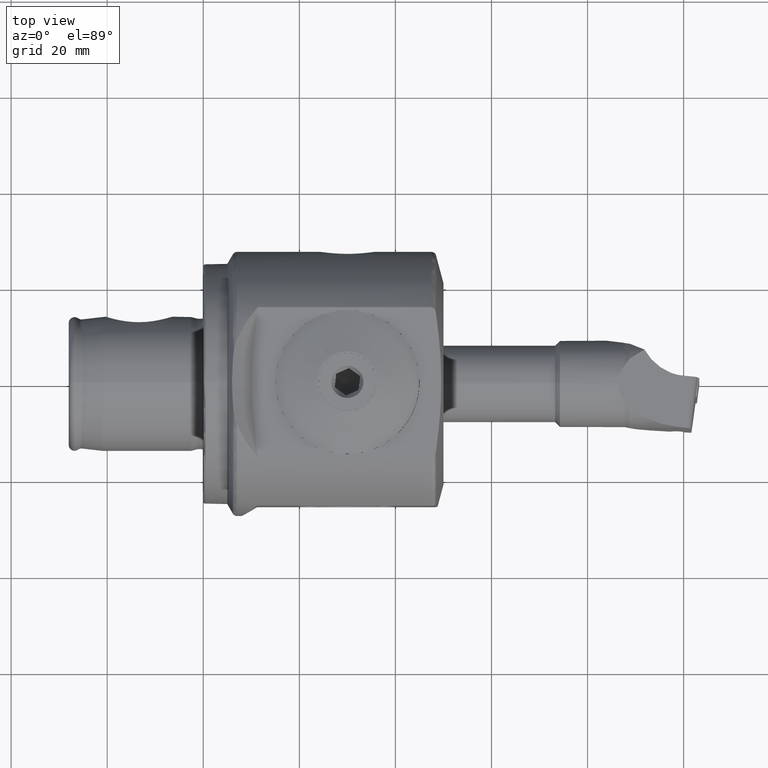
[diagram: clean part render]
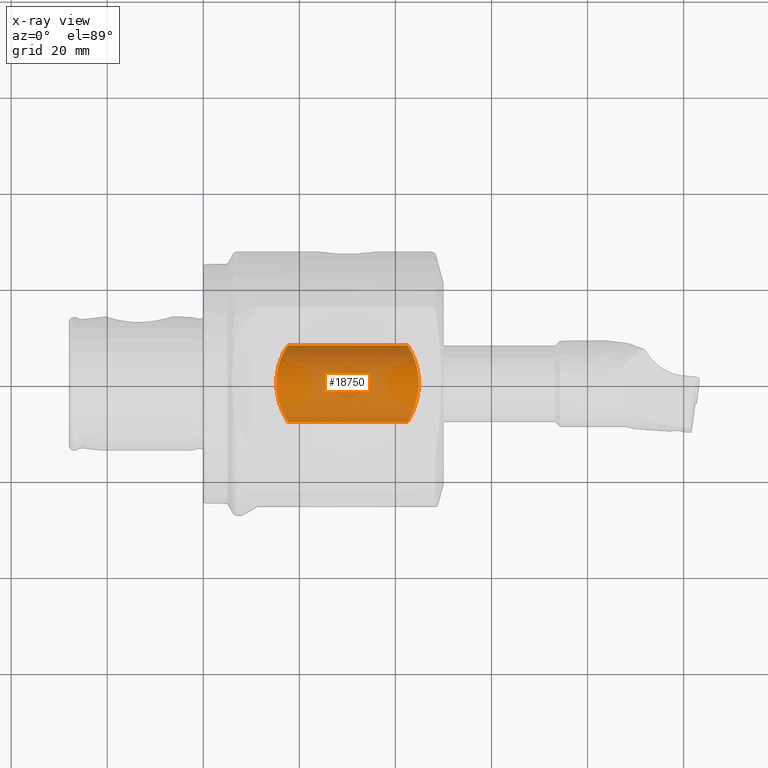
[diagram: x-ray — body ghosted, one internal face saturated and labeled with its STEP entity id]
A machine part, top view, then the same camera in x-ray: the body is ghosted and one INTERNAL B-rep face — a face not visible from any outside direction — is saturated and labeled: STEP entity #18750.
In plain terms, the highlighted cylindrical surface (partial cylindrical patch) has radius 8 mm, axis along (1, 0, -0).
Its self-contained STEP definition (entity closure, byte-faithful):
#433 = CARTESIAN_POINT ( 'NONE',  ( -15.80000000000000100, 12.48857607528455700, 8.000000000000001800 ) ) ;
#1081 = CARTESIAN_POINT ( 'NONE',  ( -11.99703373363391800, 13.06183204446252500, -7.057253590648738100 ) ) ;
#1215 = CARTESIAN_POINT ( 'NONE',  ( -15.80000000000000100, -15.00000000000000000, -8.000000000000001800 ) ) ;
#1603 = CARTESIAN_POINT ( 'NONE',  ( -11.33938364170049200, 13.27321232365917300, -6.646032415699727900 ) ) ;
#1752 = CARTESIAN_POINT ( 'NONE',  ( -11.10842185684682300, 13.35169939681795400, -6.486914297312771400 ) ) ;
#1874 = CARTESIAN_POINT ( 'NONE',  ( -10.75209540959881400, 13.48147047669598600, -6.208172024815761200 ) ) ;
#2124 = CARTESIAN_POINT ( 'NONE',  ( -10.63169837279675200, 13.52673424834530500, -6.108580947810309200 ) ) ;
#2469 = CARTESIAN_POINT ( 'NONE',  ( -10.44988572799376100, 13.59764002335423400, -5.948344559867129200 ) ) ;
#2769 = CARTESIAN_POINT ( 'NONE',  ( -10.35867785753278400, 13.63384544024244400, -5.865514638053881800 ) ) ;
#2860 = CARTESIAN_POINT ( 'NONE',  ( -10.25203629387486800, 13.67740201970023000, -5.763961592325542500 ) ) ;
#3018 = CARTESIAN_POINT ( 'NONE',  ( -10.17583689488210500, 13.70904690381690100, -5.689397697775950400 ) ) ;
#3217 = CARTESIAN_POINT ( 'NONE',  ( -10.20631654635023700, 13.69635132370104500, -5.719367291649706300 ) ) ;
#3603 = CARTESIAN_POINT ( 'NONE',  ( -10.15980640386001700, 13.71576318392245500, -5.673499314152998400 ) ) ;
#3794 = CARTESIAN_POINT ( 'NONE',  ( -7.801823745643228700, 14.85423781895214500, -1.026708712967904400 ) ) ;
#4062 = VERTEX_POINT ( 'NONE', #14767 ) ;
#4149 = EDGE_CURVE ( 'NONE', #40300, #37562, #26857, .T. ) ;
#4317 = LINE ( 'NONE', #31682, #31246 ) ;
#4638 = CARTESIAN_POINT ( 'NONE',  ( -9.354900941299016300, 14.06590102309155600, -4.767303448016594600 ) ) ;
#4839 = CARTESIAN_POINT ( 'NONE',  ( -8.935467580396174700, 14.26619226820550600, -4.116408103030219800 ) ) ;
#4932 = CARTESIAN_POINT ( 'NONE',  ( -8.652761362756022500, 14.40733507214255300, -3.595884635584245100 ) ) ;
#4981 = CARTESIAN_POINT ( 'NONE',  ( -8.578109635924686700, 14.44532980514390500, -3.444554931899741000 ) ) ;
#5632 = CARTESIAN_POINT ( 'NONE',  ( -8.500021303506045500, 14.48542966624847700, -3.273406308129688900 ) ) ;
#6548 = EDGE_CURVE ( 'NONE', #12999, #28780, #45104, .T. ) ;
#7941 = CARTESIAN_POINT ( 'NONE',  ( -8.463120768669048400, 14.50442276495150500, -3.189261263636397700 ) ) ;
#8025 = CARTESIAN_POINT ( 'NONE',  ( -8.432596171940165400, 14.52014269458635800, -3.117916326795261700 ) ) ;
#8319 = CARTESIAN_POINT ( 'NONE',  ( -8.445193041018018900, 14.51365510634071600, -3.147555607736791700 ) ) ;
#8335 = EDGE_CURVE ( 'NONE', #22811, #12999, #23905, .T. ) ;
#8677 = CARTESIAN_POINT ( 'NONE',  ( -8.437620275026594300, 14.51755520808702300, -3.129761360217059100 ) ) ;
#9176 = CARTESIAN_POINT ( 'NONE',  ( -8.430764657437185500, 14.52108589064422300, -3.113590356201487700 ) ) ;
#9462 = CARTESIAN_POINT ( 'NONE',  ( -7.998693979794978800, 14.74360967960919800, -2.087882750989551500 ) ) ;
#9968 = CARTESIAN_POINT ( 'NONE',  ( -7.798309228702202700, 14.86038199151019200, -0.01431353123325688700 ) ) ;
#11187 = CARTESIAN_POINT ( 'NONE',  ( -7.798309228702202700, 14.86038199151019200, -0.01431353123325688700 ) ) ;
#12114 = CARTESIAN_POINT ( 'NONE',  ( -7.800019248237294500, -14.79999038288568300, 0.01754911468533361400 ) ) ;
#12176 = CARTESIAN_POINT ( 'NONE',  ( -7.798935397564521900, -14.80060712764182500, -0.4765376056678002900 ) ) ;
#12280 = CARTESIAN_POINT ( 'NONE',  ( -7.843830692140918400, -14.77156512392016400, -0.9918609266544377000 ) ) ;
#12290 = CARTESIAN_POINT ( 'NONE',  ( -7.995374959085290300, -14.68350957263729500, -1.777338602802722900 ) ) ;
#12428 = CARTESIAN_POINT ( 'NONE',  ( -8.059903404547139200, -14.64674254364759800, -2.041378397874367600 ) ) ;
#12477 = CARTESIAN_POINT ( 'NONE',  ( -8.179348133036089800, -14.58046923231992200, -2.438184855605034100 ) ) ;
#12485 = CARTESIAN_POINT ( 'NONE',  ( -8.244729891552630400, -14.54455188469529700, -2.636768476185397800 ) ) ;
#12566 = CARTESIAN_POINT ( 'NONE',  ( -8.331225207202511000, -14.49778210153522600, -2.868135816814613400 ) ) ;
#12577 = CARTESIAN_POINT ( 'NONE',  ( -8.377062255876005300, -14.47318065722233800, -2.983657566262385400 ) ) ;
#12616 = CARTESIAN_POINT ( 'NONE',  ( -8.400632399718851700, -14.46057579688268100, -3.041367388026914800 ) ) ;
#12627 = CARTESIAN_POINT ( 'NONE',  ( -8.410873968316355600, -14.45510854141214500, -3.066088082102774900 ) ) ;
#12718 = CARTESIAN_POINT ( 'NONE',  ( -8.417732858026955300, -14.45144922166115700, -3.082565730663776800 ) ) ;
#12728 = CARTESIAN_POINT ( 'NONE',  ( -8.421619903177532500, -14.44937690274265300, -3.091852782749571600 ) ) ;
#12772 = CARTESIAN_POINT ( 'NONE',  ( -8.593241950385632300, -14.35791219398861400, -3.500433451434571200 ) ) ;
#12782 = CARTESIAN_POINT ( 'NONE',  ( -8.811284096071606300, -14.24327820495361700, -3.927778351718671500 ) ) ;
#12828 = CARTESIAN_POINT ( 'NONE',  ( -9.236039956667955400, -14.03446257693152100, -4.580592400667540300 ) ) ;
#12858 = CARTESIAN_POINT ( 'NONE',  ( -9.393890733278887200, -13.95871326017922300, -4.800036436862828100 ) ) ;
#12865 = CARTESIAN_POINT ( 'NONE',  ( -9.657666192166235700, -13.83587312393337100, -5.127512245352287200 ) ) ;
#12911 = CARTESIAN_POINT ( 'NONE',  ( -9.796297296983844700, -13.77214901553109900, -5.290814120412313100 ) ) ;
#12923 = CARTESIAN_POINT ( 'NONE',  ( -9.970317621274528400, -13.69377215190625600, -5.479452730020640600 ) ) ;
#12969 = CARTESIAN_POINT ( 'NONE',  ( -10.06045115252666200, -13.65357570247160800, -5.573151516249105000 ) ) ;
#12999 = VERTEX_POINT ( 'NONE', #9968 ) ;
#13006 = CARTESIAN_POINT ( 'NONE',  ( -10.09975445085442700, -13.63613264893771800, -5.613158796174994700 ) ) ;
#13058 = CARTESIAN_POINT ( 'NONE',  ( -10.12610714004832800, -13.62445594574264100, -5.639795280453011400 ) ) ;
#13069 = CARTESIAN_POINT ( 'NONE',  ( -10.13832397403970900, -13.61904507874394300, -5.652069400110094400 ) ) ;
#13113 = CARTESIAN_POINT ( 'NONE',  ( -10.64185080460273300, -13.39688006042420000, -6.153743390057296200 ) ) ;
#13153 = CARTESIAN_POINT ( 'NONE',  ( -11.12878006070701200, -13.21543803263901600, -6.514980619360621900 ) ) ;
#13159 = CARTESIAN_POINT ( 'NONE',  ( -11.78425927616709300, -12.99426106683942800, -6.923882110992590100 ) ) ;
#13208 = CARTESIAN_POINT ( 'NONE',  ( -11.99074105452770000, -12.92903309088593400, -7.038133940513774600 ) ) ;
#13261 = CARTESIAN_POINT ( 'NONE',  ( -12.27698905468234400, -12.84393764592524300, -7.183302837047885500 ) ) ;
#13301 = CARTESIAN_POINT ( 'NONE',  ( -12.36851456710996400, -12.81769691743327000, -7.227319169589698300 ) ) ;
#13313 = CARTESIAN_POINT ( 'NONE',  ( -12.49946171971445200, -12.78152245443769500, -7.287575435231083500 ) ) ;
#13369 = CARTESIAN_POINT ( 'NONE',  ( -12.56335169040060700, -12.76423188037550500, -7.316260661284158800 ) ) ;
#13416 = CARTESIAN_POINT ( 'NONE',  ( -12.63502469850254800, -12.74545369448191300, -7.347365047450193900 ) ) ;
#13447 = CARTESIAN_POINT ( 'NONE',  ( -12.66511861721655500, -12.73770464706586700, -7.360206234619680800 ) ) ;
#13455 = CARTESIAN_POINT ( 'NONE',  ( -12.68504177887400000, -12.73260500357479900, -7.368660148283147700 ) ) ;
#13507 = CARTESIAN_POINT ( 'NONE',  ( -12.69279716100930600, -12.73062476644308400, -7.371948139178960500 ) ) ;
#13516 = CARTESIAN_POINT ( 'NONE',  ( -13.24476940629294000, -12.59116291455568900, -7.603126881352428000 ) ) ;
#13567 = AXIS2_PLACEMENT_3D ( 'NONE', #15630, #14675, #14587 ) ;
#13595 = CARTESIAN_POINT ( 'NONE',  ( -13.78016407135418900, -12.48973820929536100, -7.758861354938916900 ) ) ;
#13603 = CARTESIAN_POINT ( 'NONE',  ( -14.81906662319057800, -12.35451085858112900, -7.957225421846128900 ) ) ;
#13667 = CARTESIAN_POINT ( 'NONE',  ( -15.32190926080623300, -12.32069792520781900, -8.000000001388819700 ) ) ;
#13758 = CARTESIAN_POINT ( 'NONE',  ( -15.80000002317506100, -12.32071618647199300, -8.000000466043690700 ) ) ;
#14139 = CARTESIAN_POINT ( 'NONE',  ( -15.80000000009334600, 12.48857784695298700, -7.999999479175090600 ) ) ;
#14587 = DIRECTION ( 'NONE',  ( 0.0000000000000000000, 0.0000000000000000000, 1.000000000000000000 ) ) ;
#14675 = DIRECTION ( 'NONE',  ( -0.0000000000000000000, 1.000000000000000000, -0.0000000000000000000 ) ) ;
#14767 = CARTESIAN_POINT ( 'NONE',  ( -15.79999992792845600, -12.32070942630816300, 8.000005597875608400 ) ) ;
#15587 = EDGE_CURVE ( 'NONE', #37562, #4062, #19202, .T. ) ;
#15630 = CARTESIAN_POINT ( 'NONE',  ( -15.80000000000000100, -15.00000000000000000, 0.0000000000000000000 ) ) ;
#16603 = CARTESIAN_POINT ( 'NONE',  ( -9.705737012919945200, 13.90660695935770100, -5.219895281373318600 ) ) ;
#18750 = ADVANCED_FACE ( 'NONE', ( #24260 ), #24008, .F. ) ;
#19202 = B_SPLINE_CURVE_WITH_KNOTS ( 'NONE', 3,
 ( #29658, #29605, #29554, #29522, #29505, #29463, #29411, #29350, #29315, #29189, #29145, #29086, #28996, #28980, #28934, #28887, #28848, #28833, #28795, #28725, #28684, #28555, #28551, #28515, #28458, #28403, #28395, #28367, #28349, #28216, #28202, #28159, #28100, #28054, #28041, #27995, #27946, #27934, #27901, #27886, #27785, #27750 ),
 .UNSPECIFIED., .F., .F.,
 ( 4, 2, 2, 2, 1, 1, 1, 1, 2, 2, 2, 2, 1, 1, 2, 2, 2, 2, 2, 1, 1, 1, 1, 2, 2, 4 ),
 ( 0.5000000000000000000, 0.5312099454723497900, 0.5624198909446996900, 0.5629075463427051200, 0.5633952017407105600, 0.5643705125367215500, 0.5663211341287433000, 0.5702223773127869100, 0.5780248636808740200, 0.5936298364170481400, 0.6248397818893964800, 0.6258150926854073600, 0.6267904034814182300, 0.6287410250734399900, 0.6326422682574836000, 0.6404447546255707100, 0.6560497273617447200, 0.6872596728340930600, 0.6877473282320985000, 0.6882349836301039400, 0.6892102944261148100, 0.6911609160181366700, 0.6950621592021801700, 0.7028646455702671800, 0.7184696183064412900, 0.7496795637787894200 ),
 .UNSPECIFIED. ) ;
#20067 = CARTESIAN_POINT ( 'NONE',  ( -7.800019248237294500, -14.79999038288568300, 0.01754911468533361400 ) ) ;
#21223 = LINE ( 'NONE', #1215, #30757 ) ;
#21985 = DIRECTION ( 'NONE',  ( -0.0000000000000000000, 1.000000000000000000, -0.0000000000000000000 ) ) ;
#22811 = VERTEX_POINT ( 'NONE', #433 ) ;
#23905 = B_SPLINE_CURVE_WITH_KNOTS ( 'NONE', 3,
 ( #30424, #30477, #29644, #29580, #29486, #29435, #29337, #29279, #29170, #29110, #29022, #28960, #28869, #28815, #28539, #28479, #28383, #28334, #28241, #28186, #28147, #28076, #28023, #27988, #27926, #27860, #27828, #27715, #27626, #27562, #27448, #27385, #27291, #27231, #27138, #27085, #27033, #26985, #26914, #26860, #26818, #26762, #26703, #26664, #26610, #26560, #26464, #26398, #26288 ),
 .UNSPECIFIED., .F., .F.,
 ( 4, 2, 2, 2, 1, 1, 1, 1, 2, 2, 2, 2, 2, 1, 1, 2, 2, 2, 2, 2, 1, 1, 1, 2, 2, 2, 2, 2, 4 ),
 ( 0.0000000000000000000, 0.03125994611234391600, 0.04688991916851593300, 0.05470490569660189900, 0.05861239896064487200, 0.06056614559266634800, 0.06154301890867708300, 0.06203145556668245700, 0.06227567389568508500, 0.06251989222468772000, 0.09377983833703514000, 0.1094098113932088600, 0.1172247979212957400, 0.1211322911853392100, 0.1230860378173608700, 0.1240629111333717400, 0.1250397844493826000, 0.1562997305617306900, 0.1719297036179047200, 0.1797446901459917300, 0.1836521834100352200, 0.1856059300420569700, 0.1865828033580678700, 0.1870712400160733100, 0.1875596766740787200, 0.2188196227864254700, 0.2344495958425988300, 0.2422645823706855700, 0.2500795688987722500 ),
 .UNSPECIFIED. ) ;
#24008 = CYLINDRICAL_SURFACE ( 'NONE', #13567, 8.000000000000001800 ) ;
#24260 = FACE_OUTER_BOUND ( 'NONE', #45410, .T. ) ;
#26288 = CARTESIAN_POINT ( 'NONE',  ( -7.798309228702202700, 14.86038199151019200, -0.01431353123325688700 ) ) ;
#26398 = CARTESIAN_POINT ( 'NONE',  ( -7.799785937229216000, 14.85475260890642900, 0.1125153898005803300 ) ) ;
#26464 = CARTESIAN_POINT ( 'NONE',  ( -7.802625340165729300, 14.85308855717571000, 0.2422796455528361000 ) ) ;
#26489 = CARTESIAN_POINT ( 'NONE',  ( -15.80000002317506100, -12.32071618647199300, -8.000000466043690700 ) ) ;
#26560 = CARTESIAN_POINT ( 'NONE',  ( -7.814623621088585100, 14.84631739819847400, 0.5004647475419086200 ) ) ;
#26610 = CARTESIAN_POINT ( 'NONE',  ( -7.823779922561200800, 14.84121034505559900, 0.6300264256673631100 ) ) ;
#26664 = CARTESIAN_POINT ( 'NONE',  ( -7.860956229040254200, 14.82072476466423400, 1.019639193976627800 ) ) ;
#26703 = CARTESIAN_POINT ( 'NONE',  ( -7.898692075714096800, 14.80018181645299100, 1.280625850974626000 ) ) ;
#26762 = CARTESIAN_POINT ( 'NONE',  ( -8.052360826755252900, 14.71789528796821700, 2.063192957402216100 ) ) ;
#26818 = CARTESIAN_POINT ( 'NONE',  ( -8.208926170584959400, 14.63549402384367000, 2.584486643515612900 ) ) ;
#26857 = B_SPLINE_CURVE_WITH_KNOTS ( 'NONE', 3,
 ( #13758, #13667, #13603, #13595, #13516, #13507, #13455, #13447, #13416, #13369, #13313, #13301, #13261, #13208, #13159, #13153, #13113, #13069, #13058, #13006, #12969, #12923, #12911, #12865, #12858, #12828, #12782, #12772, #12728, #12718, #12627, #12616, #12577, #12566, #12485, #12477, #12428, #12290, #12280, #12176, #12114 ),
 .UNSPECIFIED., .F., .F.,
 ( 4, 2, 2, 2, 1, 1, 2, 2, 2, 2, 2, 1, 1, 1, 2, 2, 2, 2, 1, 1, 1, 1, 2, 2, 4 ),
 ( 0.2496991956747531800, 0.2809867962154086700, 0.3122743967560641700, 0.3132521342729596700, 0.3142298717898551800, 0.3161853468236460200, 0.3200962968912278200, 0.3279181970263914700, 0.3435619972967189400, 0.3748495978373739300, 0.3758273353542694900, 0.3768050728711649400, 0.3787605479049558400, 0.3826714979725377400, 0.3904933981077015100, 0.4061371983780289700, 0.4374247989186840200, 0.4379136676771317500, 0.4384025364355794700, 0.4393802739524750300, 0.4413357489862661500, 0.4452466990538483900, 0.4530685991890128800, 0.4687123994593419600, 0.5000000000000000000 ),
 .UNSPECIFIED. ) ;
#26860 = CARTESIAN_POINT ( 'NONE',  ( -8.425414324898348200, 14.52383129308558000, 3.100896698177272500 ) ) ;
#26914 = CARTESIAN_POINT ( 'NONE',  ( -8.427403802812993000, 14.52280525992286200, 3.105618699846354000 ) ) ;
#26985 = CARTESIAN_POINT ( 'NONE',  ( -8.432456902164506800, 14.52019909959371600, 3.117587351967589600 ) ) ;
#27033 = CARTESIAN_POINT ( 'NONE',  ( -8.440073424541253600, 14.51627093472373500, 3.135566644002875800 ) ) ;
#27085 = CARTESIAN_POINT ( 'NONE',  ( -8.458105085599381600, 14.50697274605994000, 3.177701376094042900 ) ) ;
#27138 = CARTESIAN_POINT ( 'NONE',  ( -8.495220835812190800, 14.48784648619690300, 3.262693718241722600 ) ) ;
#27207 = ORIENTED_EDGE ( 'NONE', *, *, #43082, .F. ) ;
#27231 = CARTESIAN_POINT ( 'NONE',  ( -8.528884320663033600, 14.47054417911075100, 3.336751059922870200 ) ) ;
#27291 = CARTESIAN_POINT ( 'NONE',  ( -8.598801124800390400, 14.43472840485748600, 3.486381819681996700 ) ) ;
#27385 = CARTESIAN_POINT ( 'NONE',  ( -8.648865330659132800, 14.40923634191405100, 3.588159672345032200 ) ) ;
#27448 = CARTESIAN_POINT ( 'NONE',  ( -8.810410796891172700, 14.32791551275997800, 3.898731889339525300 ) ) ;
#27562 = CARTESIAN_POINT ( 'NONE',  ( -8.933251176463086200, 14.26724210622555900, 4.112811269668911900 ) ) ;
#27626 = CARTESIAN_POINT ( 'NONE',  ( -9.355090809610020500, 14.06584332532718100, 4.767910371375648100 ) ) ;
#27694 = ORIENTED_EDGE ( 'NONE', *, *, #4149, .T. ) ;
#27715 = CARTESIAN_POINT ( 'NONE',  ( -9.707849267026844600, 13.90573938966811200, 5.222650784681092300 ) ) ;
#27750 = CARTESIAN_POINT ( 'NONE',  ( -15.79999992792845600, -12.32070942630816300, 8.000005597875608400 ) ) ;
#27785 = CARTESIAN_POINT ( 'NONE',  ( -15.32376295283204800, -12.32051646354878100, 7.999999995501121400 ) ) ;
#27828 = CARTESIAN_POINT ( 'NONE',  ( -10.16402754109873500, 13.71398668423893100, 5.677692812640153800 ) ) ;
#27860 = CARTESIAN_POINT ( 'NONE',  ( -10.18050308281771200, 13.70709033129670300, 5.694006522694794000 ) ) ;
#27886 = CARTESIAN_POINT ( 'NONE',  ( -14.82068703618036700, -12.35427369732136400, 7.957436063474602000 ) ) ;
#27901 = CARTESIAN_POINT ( 'NONE',  ( -14.04123791190350100, -12.45583484810239500, 7.808758964382386500 ) ) ;
#27926 = CARTESIAN_POINT ( 'NONE',  ( -10.21097669003878900, 13.69440484032707100, 5.723921236654321700 ) ) ;
#27934 = CARTESIAN_POINT ( 'NONE',  ( -13.77736853879319200, -12.49817611504976800, 7.745067769418628100 ) ) ;
#27946 = CARTESIAN_POINT ( 'NONE',  ( -13.37824079988458700, -12.57441934050137000, 7.625900640045349700 ) ) ;
#27988 = CARTESIAN_POINT ( 'NONE',  ( -10.25668772620282700, 13.67547052922882100, 5.768434574986969200 ) ) ;
#27995 = CARTESIAN_POINT ( 'NONE',  ( -13.17785505034450500, -12.61572378448480200, 7.560412581381283000 ) ) ;
#28023 = CARTESIAN_POINT ( 'NONE',  ( -10.36331168939592800, 13.63194794749319700, 5.869808073568210100 ) ) ;
#28041 = CARTESIAN_POINT ( 'NONE',  ( -12.94333325655128100, -12.66948225716634200, 7.473186489042659800 ) ) ;
#28054 = CARTESIAN_POINT ( 'NONE',  ( -12.82598258372170200, -12.69775398218231800, 7.426810202297203600 ) ) ;
#28076 = CARTESIAN_POINT ( 'NONE',  ( -10.45450995548705500, 13.59576998170879100, 5.952499673130930100 ) ) ;
#28087 = ORIENTED_EDGE ( 'NONE', *, *, #15587, .T. ) ;
#28100 = CARTESIAN_POINT ( 'NONE',  ( -12.76729686344191700, -12.71223796685911500, 7.402924223279717900 ) ) ;
#28147 = CARTESIAN_POINT ( 'NONE',  ( -10.63631267496894700, 13.52491685583959400, 6.112478867673655000 ) ) ;
#28159 = CARTESIAN_POINT ( 'NONE',  ( -12.74214492884438600, -12.71851998647105800, 7.392537098966017500 ) ) ;
#28186 = CARTESIAN_POINT ( 'NONE',  ( -10.75671553417607900, 13.47968517952628500, 6.211924417617112200 ) ) ;
#28202 = CARTESIAN_POINT ( 'NONE',  ( -12.72537691705366200, -12.72272457679182100, 7.385578873290471700 ) ) ;
#28216 = CARTESIAN_POINT ( 'NONE',  ( -12.71528361666669000, -12.72526767699346500, 7.381365344425423900 ) ) ;
#28229 = ORIENTED_EDGE ( 'NONE', *, *, #43616, .T. ) ;
#28241 = CARTESIAN_POINT ( 'NONE',  ( -11.11311023752022500, 13.35000137338481200, 6.490297146355986000 ) ) ;
#28334 = CARTESIAN_POINT ( 'NONE',  ( -11.34418604272765500, 13.27156046635511000, 6.649258008862396700 ) ) ;
#28349 = CARTESIAN_POINT ( 'NONE',  ( -12.38956177211455600, -12.80756398144804500, 7.244984357961632400 ) ) ;
#28367 = CARTESIAN_POINT ( 'NONE',  ( -11.99831036773347200, -12.92195903431425600, 7.057892061685425500 ) ) ;
#28383 = CARTESIAN_POINT ( 'NONE',  ( -12.00245905885047600, 13.06028263645981700, 7.060192855812657000 ) ) ;
#28395 = CARTESIAN_POINT ( 'NONE',  ( -11.34140957725681000, -13.14359888171841100, 6.647378622121952000 ) ) ;
#28403 = CARTESIAN_POINT ( 'NONE',  ( -11.11104939855574600, -13.22582004220393500, 6.488757652720923200 ) ) ;
#28458 = CARTESIAN_POINT ( 'NONE',  ( -10.75600038365032100, -13.36166359995843900, 6.211330475421228000 ) ) ;
#28479 = CARTESIAN_POINT ( 'NONE',  ( -12.39357114027443400, 12.95149060478805800, 7.246793463848603300 ) ) ;
#28481 = ORIENTED_EDGE ( 'NONE', *, *, #8335, .T. ) ;
#28515 = CARTESIAN_POINT ( 'NONE',  ( -10.63609085488284500, -13.40903008871430300, 6.112272873230648600 ) ) ;
#28539 = CARTESIAN_POINT ( 'NONE',  ( -12.71534148311482100, 12.87415895791057900, 7.381388022897637000 ) ) ;
#28551 = CARTESIAN_POINT ( 'NONE',  ( -10.45507478043358400, -13.48320777610465800, 5.953002077204987000 ) ) ;
#28555 = CARTESIAN_POINT ( 'NONE',  ( -10.36428143019149300, -13.52107860836397700, 5.870696290191030900 ) ) ;
#28684 = CARTESIAN_POINT ( 'NONE',  ( -10.25814491354507200, -13.56662972598709300, 5.769831885803562900 ) ) ;
#28725 = CARTESIAN_POINT ( 'NONE',  ( -10.21264539451903300, -13.58644487925140100, 5.725549746605231000 ) ) ;
#28780 = VERTEX_POINT ( 'NONE', #14139 ) ;
#28795 = CARTESIAN_POINT ( 'NONE',  ( -10.18231330956041700, -13.59972014714128900, 5.695792099111284500 ) ) ;
#28815 = CARTESIAN_POINT ( 'NONE',  ( -12.72079694816541500, 12.87284966372071100, 7.383666370938555300 ) ) ;
#28833 = CARTESIAN_POINT ( 'NONE',  ( -10.16618448486070200, -13.60682143096422400, 5.679830457016869600 ) ) ;
#28848 = CARTESIAN_POINT ( 'NONE',  ( -9.728085056626563100, -13.80026374589935200, 5.243239332618081500 ) ) ;
#28869 = CARTESIAN_POINT ( 'NONE',  ( -12.72915905822234000, 12.87084771215592100, 7.387148057407436000 ) ) ;
#28887 = CARTESIAN_POINT ( 'NONE',  ( -9.381165759079493700, -13.96334116070215700, 4.802554800059870600 ) ) ;
#28911 = ORIENTED_EDGE ( 'NONE', *, *, #6548, .T. ) ;
#28934 = CARTESIAN_POINT ( 'NONE',  ( -8.958540580870526100, -14.17120276520493900, 4.154626869094562900 ) ) ;
#28960 = CARTESIAN_POINT ( 'NONE',  ( -12.74170227966313400, 12.86785066675970100, 7.392358112565165800 ) ) ;
#28980 = CARTESIAN_POINT ( 'NONE',  ( -8.833859999752750300, -14.23436421375562800, 3.940684093952016900 ) ) ;
#28996 = CARTESIAN_POINT ( 'NONE',  ( -8.668161374158343000, -14.31991775715629900, 3.626417270915714300 ) ) ;
#29022 = CARTESIAN_POINT ( 'NONE',  ( -12.77096999943299100, 12.86089873449186000, 7.404427689712280300 ) ) ;
#29086 = CARTESIAN_POINT ( 'NONE',  ( -8.590638949450049500, -14.36039737150028400, 3.470932825511751300 ) ) ;
#29110 = CARTESIAN_POINT ( 'NONE',  ( -12.82950472633631900, 12.84715956458296100, 7.428218804102000300 ) ) ;
#29145 = CARTESIAN_POINT ( 'NONE',  ( -8.508842938837878100, -14.40360356286135100, 3.293077089171819100 ) ) ;
#29170 = CARTESIAN_POINT ( 'NONE',  ( -12.94655922726617600, 12.82034000327214500, 7.474415599360956000 ) ) ;
#29189 = CARTESIAN_POINT ( 'NONE',  ( -8.470021425578323700, -14.42420165219848900, 3.205107935998518200 ) ) ;
#29279 = CARTESIAN_POINT ( 'NONE',  ( -13.04682487153634800, 12.79848114244632200, 7.511661127042435400 ) ) ;
#29315 = CARTESIAN_POINT ( 'NONE',  ( -8.451119165694565900, -14.43424944528121000, 3.161371941723015900 ) ) ;
#29337 = CARTESIAN_POINT ( 'NONE',  ( -13.24716147743405200, 12.75626920023925900, 7.583081179820533500 ) ) ;
#29350 = CARTESIAN_POINT ( 'NONE',  ( -8.443126021417580100, -14.43850180269112300, 3.142682140349365200 ) ) ;
#29411 = CARTESIAN_POINT ( 'NONE',  ( -8.437821092918373000, -14.44132474326983300, 3.130234418080601900 ) ) ;
#29435 = CARTESIAN_POINT ( 'NONE',  ( -13.38045812744251300, 12.73013561136066900, 7.626599118953082600 ) ) ;
#29463 = CARTESIAN_POINT ( 'NONE',  ( -8.435602256378356100, -14.44250555338253300, 3.125015964190189800 ) ) ;
#29486 = CARTESIAN_POINT ( 'NONE',  ( -13.77877459245584300, 12.65775796250325800, 7.745413857825648000 ) ) ;
#29505 = CARTESIAN_POINT ( 'NONE',  ( -8.210653735528712400, -14.56228040926670500, 2.593262183050330200 ) ) ;
#29522 = CARTESIAN_POINT ( 'NONE',  ( -8.052600731448006100, -14.65088333711458500, 2.063837086327892800 ) ) ;
#29554 = CARTESIAN_POINT ( 'NONE',  ( -7.847875145149816800, -14.76943071691879300, 1.022413437967413700 ) ) ;
#29580 = CARTESIAN_POINT ( 'NONE',  ( -14.04219738087463800, 12.61753702030279800, 7.808963303316846600 ) ) ;
#29605 = CARTESIAN_POINT ( 'NONE',  ( -7.801100408818897800, -14.79937516887512100, 0.5104095237408369200 ) ) ;
#29644 = CARTESIAN_POINT ( 'NONE',  ( -14.82063972713733900, 12.52096666481482000, 7.957384315046669000 ) ) ;
#29658 = CARTESIAN_POINT ( 'NONE',  ( -7.800019248237294500, -14.79999038288568300, 0.01754911468533361400 ) ) ;
#30424 = CARTESIAN_POINT ( 'NONE',  ( -15.80000000000000100, 12.48857607528455700, 8.000000000000001800 ) ) ;
#30477 = CARTESIAN_POINT ( 'NONE',  ( -15.32349510592181500, 12.48870972264074000, 8.000000000000003600 ) ) ;
#30757 = VECTOR ( 'NONE', #21985, 1000.000000000000000 ) ;
#31246 = VECTOR ( 'NONE', #42279, 1000.000000000000000 ) ;
#31682 = CARTESIAN_POINT ( 'NONE',  ( -15.80000000000000100, -15.00000000000000000, 8.000000000000001800 ) ) ;
#37562 = VERTEX_POINT ( 'NONE', #20067 ) ;
#40300 = VERTEX_POINT ( 'NONE', #26489 ) ;
#41879 = CARTESIAN_POINT ( 'NONE',  ( -8.813351959885714800, 14.32651437482900600, -3.903892283880670400 ) ) ;
#42279 = DIRECTION ( 'NONE',  ( -0.0000000000000000000, 1.000000000000000000, -0.0000000000000000000 ) ) ;
#43082 = EDGE_CURVE ( 'NONE', #40300, #28780, #21223, .T. ) ;
#43616 = EDGE_CURVE ( 'NONE', #4062, #22811, #4317, .T. ) ;
#43689 = CARTESIAN_POINT ( 'NONE',  ( -15.80000000009334600, 12.48857784695298700, -7.999999479175090600 ) ) ;
#43747 = CARTESIAN_POINT ( 'NONE',  ( -15.32099305377507800, 12.48870378161977300, -8.000000000008952800 ) ) ;
#43794 = CARTESIAN_POINT ( 'NONE',  ( -14.81573397132059900, 12.52119151725401000, -7.956932092716155800 ) ) ;
#43842 = CARTESIAN_POINT ( 'NONE',  ( -14.03403619442231700, 12.61846700209691000, -7.807160740193373800 ) ) ;
#43898 = CARTESIAN_POINT ( 'NONE',  ( -13.76958706421178700, 12.65898281060980000, -7.743049924860978100 ) ) ;
#43987 = CARTESIAN_POINT ( 'NONE',  ( -13.36984752647230900, 12.73189249372702000, -7.623234789942104700 ) ) ;
#44209 = CARTESIAN_POINT ( 'NONE',  ( -13.16922014617328400, 12.77138132787261600, -7.557418187145960300 ) ) ;
#44307 = CARTESIAN_POINT ( 'NONE',  ( -12.93452737834651400, 12.82276112140299800, -7.469815675812681900 ) ) ;
#44503 = CARTESIAN_POINT ( 'NONE',  ( -12.81711857280604000, 12.84977838992497600, -7.423254801730652600 ) ) ;
#44600 = CARTESIAN_POINT ( 'NONE',  ( -12.75841057152304400, 12.86361886712517900, -7.399277672591386700 ) ) ;
#44827 = CARTESIAN_POINT ( 'NONE',  ( -12.73325053566060000, 12.86962160941223100, -7.388851754587898700 ) ) ;
#44919 = CARTESIAN_POINT ( 'NONE',  ( -12.72067071692685000, 12.87263483208930200, -7.383613735731568500 ) ) ;
#45068 = CARTESIAN_POINT ( 'NONE',  ( -12.71528426522925400, 12.87392822108551200, -7.381364104160322600 ) ) ;
#45104 = B_SPLINE_CURVE_WITH_KNOTS ( 'NONE', 3,
 ( #11187, #3794, #9462, #9176, #8025, #8677, #8319, #7941, #5632, #4981, #4932, #41879, #4839, #4638, #16603, #3603, #3018, #3217, #2860, #2769, #2469, #2124, #1874, #1752, #1603, #1081, #45445, #45392, #45290, #45068, #44919, #44827, #44600, #44503, #44307, #44209, #43987, #43898, #43842, #43794, #43747, #43689 ),
 .UNSPECIFIED., .F., .F.,
 ( 4, 2, 2, 1, 1, 1, 1, 2, 2, 2, 2, 1, 1, 2, 2, 2, 2, 2, 2, 1, 1, 1, 1, 2, 2, 4 ),
 ( 0.2500795688987722000, 0.3124635554359622700, 0.3129509303307840800, 0.3134383052256059000, 0.3144130550152495200, 0.3163625545945367200, 0.3202615537531111600, 0.3280595520702601600, 0.3436555487045580000, 0.3748475419731537900, 0.3758222917627973600, 0.3767970415524409800, 0.3787465411317282300, 0.3826455402903027300, 0.3904435386074517300, 0.4060395352417496300, 0.4372315285103454100, 0.4374752159577564000, 0.4377189034051673400, 0.4382062782999892600, 0.4391810280896330000, 0.4411305276689204700, 0.4450295268274952500, 0.4528275251446449700, 0.4684235217789444700, 0.4996155150475435300 ),
 .UNSPECIFIED. ) ;
#45290 = CARTESIAN_POINT ( 'NONE',  ( -12.71033252108408900, 12.87511888763441100, -7.379292789438438600 ) ) ;
#45392 = CARTESIAN_POINT ( 'NONE',  ( -12.70785232144123000, 12.87571618062080200, -7.378253857996766000 ) ) ;
#45410 = EDGE_LOOP ( 'NONE', ( #27207, #27694, #28087, #28229, #28481, #28911 ) ) ;
#45445 = CARTESIAN_POINT ( 'NONE',  ( -12.38734926606222000, 12.95301977870435400, -7.243807521972348300 ) ) ;